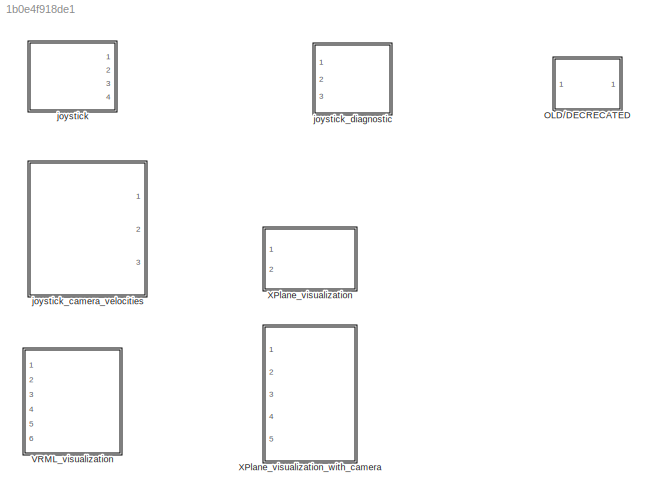
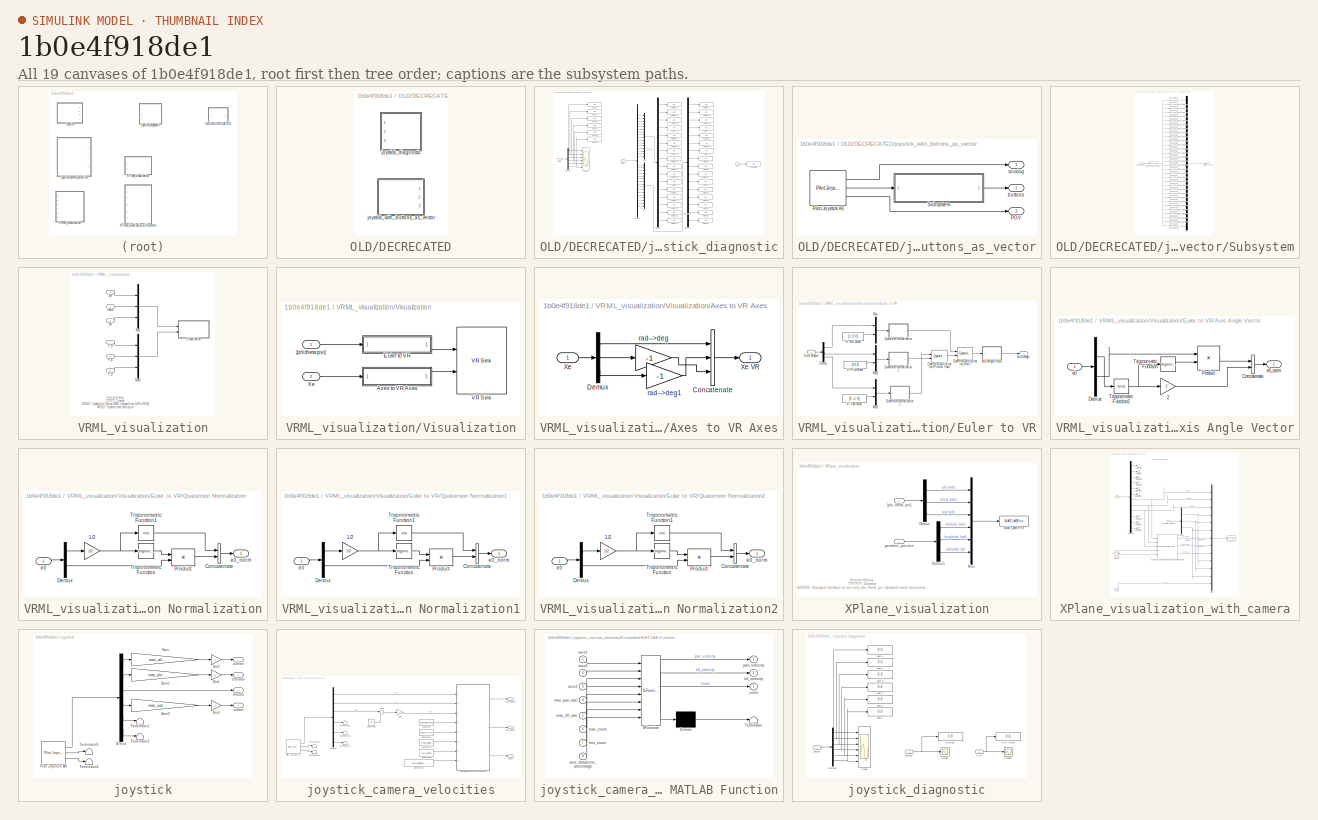
[diagram: thumbnail index - all 19 canvases of the model, root first then tree order]
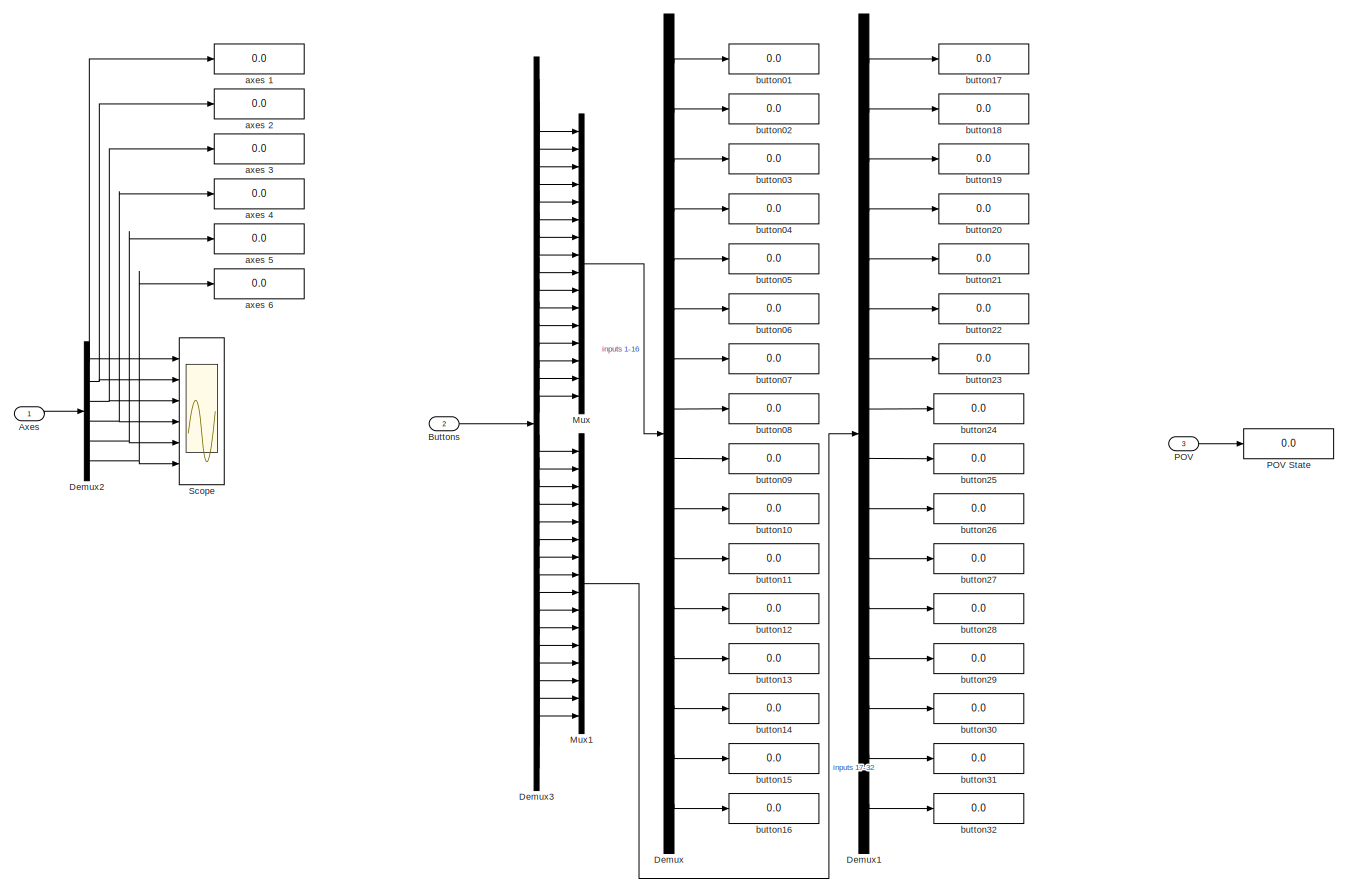
[diagram: OLD/DECRECATED/joystick_diagnostic - part 1/1, most of the canvas]
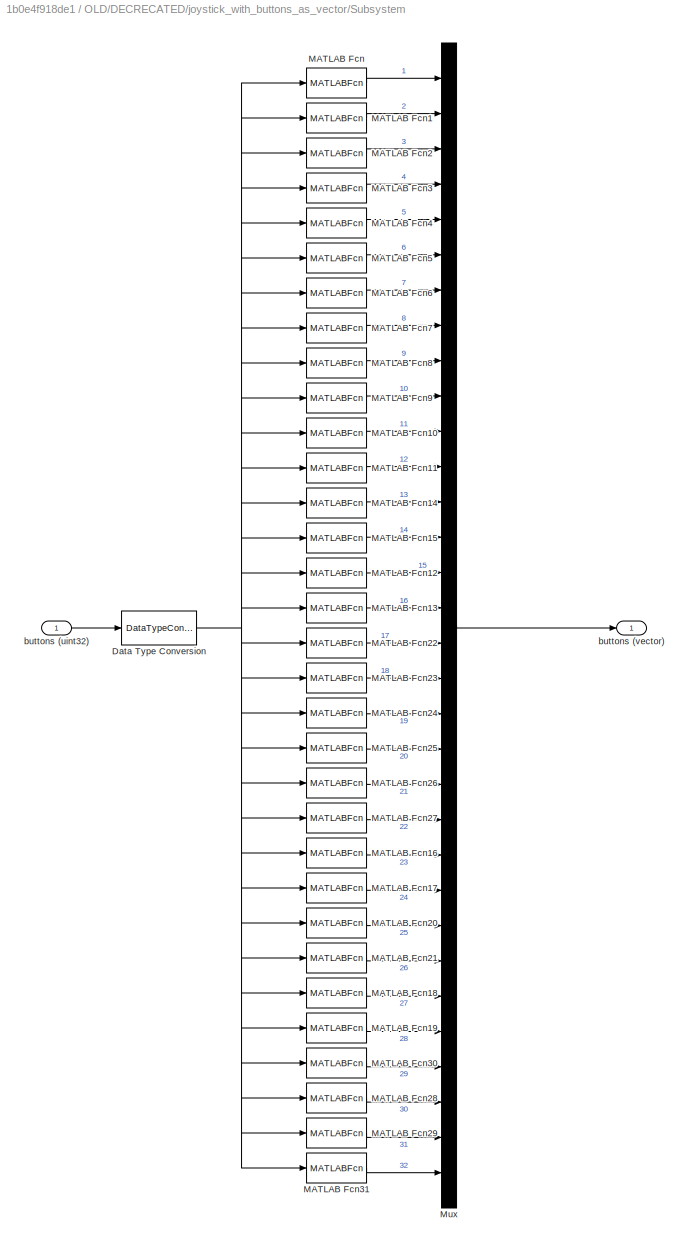
MODEL slx_1b0e4f918de1
KIND library
CONFIG AbsTol = auto
CONFIG EnableMultiTasking = on
CONFIG FixedStep = auto
CONFIG MaxStep = auto
CONFIG MinStep = auto
CONFIG RelTol = 1e-3
CONFIG SampleTimeConstraint = Unconstrained
CONFIG SolverName = ode45
CONFIG StartTime = 0.0
CONFIG StopTime = 10.0
BLOCK [SubSystem] OLD//DECRECATED
  Ports = []
  RequestExecContextInheritance = off
BLOCK [SubSystem] OLD//DECRECATED/joystick_diagnostic
  Ports = [3]
  RequestExecContextInheritance = off
BLOCK [Inport] OLD//DECRECATED/joystick_diagnostic/Axes
BLOCK [Inport] OLD//DECRECATED/joystick_diagnostic/Buttons
  Port = 2
BLOCK [Demux] OLD//DECRECATED/joystick_diagnostic/Demux
  DisplayOption = none
  Outputs = 16
  Ports = [1, 16]
BLOCK [Demux] OLD//DECRECATED/joystick_diagnostic/Demux1
  DisplayOption = none
  Outputs = 16
  Ports = [1, 16]
BLOCK [Demux] OLD//DECRECATED/joystick_diagnostic/Demux2
  DisplayOption = none
  Outputs = 6
  Ports = [1, 6]
BLOCK [Demux] OLD//DECRECATED/joystick_diagnostic/Demux3
  DisplayOption = none
  Outputs = 32
  Ports = [1, 32]
BLOCK [Mux] OLD//DECRECATED/joystick_diagnostic/Mux
  DisplayOption = bar
  Inputs = 16
  Ports = [16, 1]
BLOCK [Mux] OLD//DECRECATED/joystick_diagnostic/Mux1
  DisplayOption = bar
  Inputs = 16
  Ports = [16, 1]
BLOCK [Inport] OLD//DECRECATED/joystick_diagnostic/POV
  Port = 3
BLOCK [Display] OLD//DECRECATED/joystick_diagnostic/POV State
  Decimation = 1
  Ports = [1]
BLOCK [Scope] OLD//DECRECATED/joystick_diagnostic/Scope
  Floating = off
  NumInputPorts = 6
  Ports = [6]
  ScopeSpecificationString = C++SS(StrPVP('Location','[158, 237, 814, 1004]'),StrPVP('Open','off'),MxPVP('AxesTitles',54,'struct(''axes1'',''%<SignalLabel>'',''axes2'',''%<SignalLabel>'',''axes3'',''%<SignalLabel>'',''axes4'',''%<SignalLabel>'',''axes5'',''%<SignalLabel>'',''axes6'',''%<SignalLabel>'')'),StrPVP('ShowLegends','off'),StrPVP('YMin','30885.5~30885.5~62258.3~-1~-1~-1'),StrPVP('YMax','34136.6~34136.6~68811.8~1~1~1'...<+204ch>
BLOCK [Display] OLD//DECRECATED/joystick_diagnostic/axes 1
  Decimation = 1
  Ports = [1]
BLOCK [Display] OLD//DECRECATED/joystick_diagnostic/axes 2
  Decimation = 1
  Ports = [1]
BLOCK [Display] OLD//DECRECATED/joystick_diagnostic/axes 3
  Decimation = 1
  Ports = [1]
BLOCK [Display] OLD//DECRECATED/joystick_diagnostic/axes 4
  Decimation = 1
  Ports = [1]
BLOCK [Display] OLD//DECRECATED/joystick_diagnostic/axes 5
  Decimation = 1
  Ports = [1]
BLOCK [Display] OLD//DECRECATED/joystick_diagnostic/axes 6
  Decimation = 1
  Ports = [1]
BLOCK [Display] OLD//DECRECATED/joystick_diagnostic/button01
  Decimation = 1
  Ports = [1]
BLOCK [Display] OLD//DECRECATED/joystick_diagnostic/button02
  Decimation = 1
  Ports = [1]
BLOCK [Display] OLD//DECRECATED/joystick_diagnostic/button03
  Decimation = 1
  Ports = [1]
BLOCK [Display] OLD//DECRECATED/joystick_diagnostic/button04
  Decimation = 1
  Ports = [1]
BLOCK [Display] OLD//DECRECATED/joystick_diagnostic/button05
  Decimation = 1
  Ports = [1]
BLOCK [Display] OLD//DECRECATED/joystick_diagnostic/button06
  Decimation = 1
  Ports = [1]
BLOCK [Display] OLD//DECRECATED/joystick_diagnostic/button07
  Decimation = 1
  Ports = [1]
BLOCK [Display] OLD//DECRECATED/joystick_diagnostic/button08
  Decimation = 1
  Ports = [1]
BLOCK [Display] OLD//DECRECATED/joystick_diagnostic/button09
  Decimation = 1
  Ports = [1]
BLOCK [Display] OLD//DECRECATED/joystick_diagnostic/button10
  Decimation = 1
  Ports = [1]
BLOCK [Display] OLD//DECRECATED/joystick_diagnostic/button11
  Decimation = 1
  Ports = [1]
BLOCK [Display] OLD//DECRECATED/joystick_diagnostic/button12
  Decimation = 1
  Ports = [1]
BLOCK [Display] OLD//DECRECATED/joystick_diagnostic/button13
  Decimation = 1
  Ports = [1]
BLOCK [Display] OLD//DECRECATED/joystick_diagnostic/button14
  Decimation = 1
  Ports = [1]
BLOCK [Display] OLD//DECRECATED/joystick_diagnostic/button15
  Decimation = 1
  Ports = [1]
BLOCK [Display] OLD//DECRECATED/joystick_diagnostic/button16
  Decimation = 1
  Ports = [1]
BLOCK [Display] OLD//DECRECATED/joystick_diagnostic/button17
  Decimation = 1
  Ports = [1]
BLOCK [Display] OLD//DECRECATED/joystick_diagnostic/button18
  Decimation = 1
  Ports = [1]
BLOCK [Display] OLD//DECRECATED/joystick_diagnostic/button19
  Decimation = 1
  Ports = [1]
BLOCK [Display] OLD//DECRECATED/joystick_diagnostic/button20
  Decimation = 1
  Ports = [1]
BLOCK [Display] OLD//DECRECATED/joystick_diagnostic/button21
  Decimation = 1
  Ports = [1]
BLOCK [Display] OLD//DECRECATED/joystick_diagnostic/button22
  Decimation = 1
  Ports = [1]
BLOCK [Display] OLD//DECRECATED/joystick_diagnostic/button23
  Decimation = 1
  Ports = [1]
BLOCK [Display] OLD//DECRECATED/joystick_diagnostic/button24
  Decimation = 1
  Ports = [1]
BLOCK [Display] OLD//DECRECATED/joystick_diagnostic/button25
  Decimation = 1
  Ports = [1]
BLOCK [Display] OLD//DECRECATED/joystick_diagnostic/button26
  Decimation = 1
  Ports = [1]
BLOCK [Display] OLD//DECRECATED/joystick_diagnostic/button27
  Decimation = 1
  Ports = [1]
BLOCK [Display] OLD//DECRECATED/joystick_diagnostic/button28
  Decimation = 1
  Ports = [1]
BLOCK [Display] OLD//DECRECATED/joystick_diagnostic/button29
  Decimation = 1
  Ports = [1]
BLOCK [Display] OLD//DECRECATED/joystick_diagnostic/button30
  Decimation = 1
  Ports = [1]
BLOCK [Display] OLD//DECRECATED/joystick_diagnostic/button31
  Decimation = 1
  Ports = [1]
BLOCK [Display] OLD//DECRECATED/joystick_diagnostic/button32
  Decimation = 1
  Ports = [1]
BLOCK [SubSystem] OLD//DECRECATED/joystick_with_buttons_as_vector
  Ports = [0, 3]
  RequestExecContextInheritance = off
BLOCK [Outport] OLD//DECRECATED/joystick_with_buttons_as_vector/POV
  Port = 3
  VectorParamsAs1DForOutWhenUnconnected = off
BLOCK [Reference] OLD//DECRECATED/joystick_with_buttons_as_vector/Pilot Joystick All  REF=aerolibanimutils/Pilot Joystick
  Ports = [0, 3]
  SourceBlock = aerolibanimutils/Pilot Joystick
  SourceProductBaseCode = AE
  SourceType = PilotJoystick
BLOCK [SubSystem] OLD//DECRECATED/joystick_with_buttons_as_vector/Subsystem
  Ports = [1, 1]
  RequestExecContextInheritance = off
BLOCK [DataTypeConversion] OLD//DECRECATED/joystick_with_buttons_as_vector/Subsystem/Data Type Conversion
  OutDataTypeStr = double
  RndMeth = Floor
  SaturateOnIntegerOverflow = off
BLOCK [MATLABFcn] OLD//DECRECATED/joystick_with_buttons_as_vector/Subsystem/MATLAB Fcn
  MATLABFcn = bitget(u,1)
  Ports = [1, 1]
BLOCK [MATLABFcn] OLD//DECRECATED/joystick_with_buttons_as_vector/Subsystem/MATLAB Fcn1
  MATLABFcn = bitget(u,2)
  Ports = [1, 1]
BLOCK [MATLABFcn] OLD//DECRECATED/joystick_with_buttons_as_vector/Subsystem/MATLAB Fcn10
  MATLABFcn = bitget(u,11)
  Ports = [1, 1]
BLOCK [MATLABFcn] OLD//DECRECATED/joystick_with_buttons_as_vector/Subsystem/MATLAB Fcn11
  MATLABFcn = bitget(u,12)
  Ports = [1, 1]
BLOCK [MATLABFcn] OLD//DECRECATED/joystick_with_buttons_as_vector/Subsystem/MATLAB Fcn12
  MATLABFcn = bitget(u,15)
  Ports = [1, 1]
BLOCK [MATLABFcn] OLD//DECRECATED/joystick_with_buttons_as_vector/Subsystem/MATLAB Fcn13
  MATLABFcn = bitget(u,16)
  Ports = [1, 1]
BLOCK [MATLABFcn] OLD//DECRECATED/joystick_with_buttons_as_vector/Subsystem/MATLAB Fcn14
  MATLABFcn = bitget(u,13)
  Ports = [1, 1]
BLOCK [MATLABFcn] OLD//DECRECATED/joystick_with_buttons_as_vector/Subsystem/MATLAB Fcn15
  MATLABFcn = bitget(u,14)
  Ports = [1, 1]
BLOCK [MATLABFcn] OLD//DECRECATED/joystick_with_buttons_as_vector/Subsystem/MATLAB Fcn16
  MATLABFcn = bitget(u,23)
  Ports = [1, 1]
BLOCK [MATLABFcn] OLD//DECRECATED/joystick_with_buttons_as_vector/Subsystem/MATLAB Fcn17
  MATLABFcn = bitget(u,24)
  Ports = [1, 1]
BLOCK [MATLABFcn] OLD//DECRECATED/joystick_with_buttons_as_vector/Subsystem/MATLAB Fcn18
  MATLABFcn = bitget(u,27)
  Ports = [1, 1]
BLOCK [MATLABFcn] OLD//DECRECATED/joystick_with_buttons_as_vector/Subsystem/MATLAB Fcn19
  MATLABFcn = bitget(u,28)
  Ports = [1, 1]
BLOCK [MATLABFcn] OLD//DECRECATED/joystick_with_buttons_as_vector/Subsystem/MATLAB Fcn2
  MATLABFcn = bitget(u,3)
  Ports = [1, 1]
BLOCK [MATLABFcn] OLD//DECRECATED/joystick_with_buttons_as_vector/Subsystem/MATLAB Fcn20
  MATLABFcn = bitget(u,25)
  Ports = [1, 1]
BLOCK [MATLABFcn] OLD//DECRECATED/joystick_with_buttons_as_vector/Subsystem/MATLAB Fcn21
  MATLABFcn = bitget(u,26)
  Ports = [1, 1]
BLOCK [MATLABFcn] OLD//DECRECATED/joystick_with_buttons_as_vector/Subsystem/MATLAB Fcn22
  MATLABFcn = bitget(u,17)
  Ports = [1, 1]
BLOCK [MATLABFcn] OLD//DECRECATED/joystick_with_buttons_as_vector/Subsystem/MATLAB Fcn23
  MATLABFcn = bitget(u,18)
  Ports = [1, 1]
BLOCK [MATLABFcn] OLD//DECRECATED/joystick_with_buttons_as_vector/Subsystem/MATLAB Fcn24
  MATLABFcn = bitget(u,19)
  Ports = [1, 1]
BLOCK [MATLABFcn] OLD//DECRECATED/joystick_with_buttons_as_vector/Subsystem/MATLAB Fcn25
  MATLABFcn = bitget(u,20)
  Ports = [1, 1]
BLOCK [MATLABFcn] OLD//DECRECATED/joystick_with_buttons_as_vector/Subsystem/MATLAB Fcn26
  MATLABFcn = bitget(u,21)
  Ports = [1, 1]
BLOCK [MATLABFcn] OLD//DECRECATED/joystick_with_buttons_as_vector/Subsystem/MATLAB Fcn27
  MATLABFcn = bitget(u,22)
  Ports = [1, 1]
BLOCK [MATLABFcn] OLD//DECRECATED/joystick_with_buttons_as_vector/Subsystem/MATLAB Fcn28
  MATLABFcn = bitget(u,30)
  Ports = [1, 1]
BLOCK [MATLABFcn] OLD//DECRECATED/joystick_with_buttons_as_vector/Subsystem/MATLAB Fcn29
  MATLABFcn = bitget(u,31)
  Ports = [1, 1]
BLOCK [MATLABFcn] OLD//DECRECATED/joystick_with_buttons_as_vector/Subsystem/MATLAB Fcn3
  MATLABFcn = bitget(u,4)
  Ports = [1, 1]
BLOCK [MATLABFcn] OLD//DECRECATED/joystick_with_buttons_as_vector/Subsystem/MATLAB Fcn30
  MATLABFcn = bitget(u,29)
  Ports = [1, 1]
BLOCK [MATLABFcn] OLD//DECRECATED/joystick_with_buttons_as_vector/Subsystem/MATLAB Fcn31
  MATLABFcn = bitget(u,32)
  Ports = [1, 1]
BLOCK [MATLABFcn] OLD//DECRECATED/joystick_with_buttons_as_vector/Subsystem/MATLAB Fcn4
  MATLABFcn = bitget(u,5)
  Ports = [1, 1]
BLOCK [MATLABFcn] OLD//DECRECATED/joystick_with_buttons_as_vector/Subsystem/MATLAB Fcn5
  MATLABFcn = bitget(u,6)
  Ports = [1, 1]
BLOCK [MATLABFcn] OLD//DECRECATED/joystick_with_buttons_as_vector/Subsystem/MATLAB Fcn6
  MATLABFcn = bitget(u,7)
  Ports = [1, 1]
BLOCK [MATLABFcn] OLD//DECRECATED/joystick_with_buttons_as_vector/Subsystem/MATLAB Fcn7
  MATLABFcn = bitget(u,8)
  Ports = [1, 1]
BLOCK [MATLABFcn] OLD//DECRECATED/joystick_with_buttons_as_vector/Subsystem/MATLAB Fcn8
  MATLABFcn = bitget(u,9)
  Ports = [1, 1]
BLOCK [MATLABFcn] OLD//DECRECATED/joystick_with_buttons_as_vector/Subsystem/MATLAB Fcn9
  MATLABFcn = bitget(u,10)
  Ports = [1, 1]
BLOCK [Mux] OLD//DECRECATED/joystick_with_buttons_as_vector/Subsystem/Mux
  DisplayOption = bar
  Inputs = 32
  Ports = [32, 1]
BLOCK [Inport] OLD//DECRECATED/joystick_with_buttons_as_vector/Subsystem/buttons (uint32)
BLOCK [Outport] OLD//DECRECATED/joystick_with_buttons_as_vector/Subsystem/buttons (vector)
  VectorParamsAs1DForOutWhenUnconnected = off
BLOCK [Outport] OLD//DECRECATED/joystick_with_buttons_as_vector/analog
  VectorParamsAs1DForOutWhenUnconnected = off
BLOCK [Outport] OLD//DECRECATED/joystick_with_buttons_as_vector/buttons
  Port = 2
  VectorParamsAs1DForOutWhenUnconnected = off
BLOCK [SubSystem] VRML_visualization
  Ports = [6]
  RequestExecContextInheritance = off
BLOCK [Mux] VRML_visualization/Mux
  DisplayOption = bar
  Inputs = 3
  Ports = [3, 1]
BLOCK [Mux] VRML_visualization/Mux1
  DisplayOption = bar
  Inputs = 3
  Ports = [3, 1]
BLOCK [Inport] VRML_visualization/P_D
  Port = 6
BLOCK [Inport] VRML_visualization/P_E
  Port = 5
BLOCK [Inport] VRML_visualization/P_N
  Port = 4
BLOCK [SubSystem] VRML_visualization/Visualization
  Ports = [2]
  RequestExecContextInheritance = off
BLOCK [SubSystem] VRML_visualization/Visualization/Axes to VR Axes
  Ports = [1, 1]
  RequestExecContextInheritance = off
BLOCK [Concatenate] VRML_visualization/Visualization/Axes to VR Axes/Concatenate
  NumInputs = 3
  Ports = [3, 1]
BLOCK [Demux] VRML_visualization/Visualization/Axes to VR Axes/Demux
  DisplayOption = none
  Outputs = 3
  Ports = [1, 3]
BLOCK [Inport] VRML_visualization/Visualization/Axes to VR Axes/Xe
BLOCK [Outport] VRML_visualization/Visualization/Axes to VR Axes/Xe VR
  VectorParamsAs1DForOutWhenUnconnected = off
BLOCK [Gain] VRML_visualization/Visualization/Axes to VR Axes/rad-->deg
  Gain = -1
  NameLocation = top
  OutDataTypeStr = Inherit: Same as input
  ParamDataTypeStr = Inherit: Same as input
  SaturateOnIntegerOverflow = on
BLOCK [Gain] VRML_visualization/Visualization/Axes to VR Axes/rad-->deg1
  Gain = -1
  NameLocation = top
  OutDataTypeStr = Inherit: Same as input
  ParamDataTypeStr = Inherit: Same as input
  SaturateOnIntegerOverflow = on
BLOCK [SubSystem] VRML_visualization/Visualization/Euler to VR
  Ports = [1, 1]
  RequestExecContextInheritance = off
BLOCK [Outport] VRML_visualization/Visualization/Euler to VR/Axis Angle
  VectorParamsAs1DForOutWhenUnconnected = off
BLOCK [SubSystem] VRML_visualization/Visualization/Euler to VR/Axis Angle Vector
  Ports = [1, 1]
  RequestExecContextInheritance = off
BLOCK [Gain] VRML_visualization/Visualization/Euler to VR/Axis Angle Vector/2
  Gain = 2
  OutDataTypeStr = Inherit: Same as input
  ParamDataTypeStr = Inherit: Same as input
  SaturateOnIntegerOverflow = on
BLOCK [Concatenate] VRML_visualization/Visualization/Euler to VR/Axis Angle Vector/Concatenate
  Ports = [2, 1]
BLOCK [Demux] VRML_visualization/Visualization/Euler to VR/Axis Angle Vector/Demux
  DisplayOption = none
  Outputs = [1 3 ]
  Ports = [1, 2]
BLOCK [Product] VRML_visualization/Visualization/Euler to VR/Axis Angle Vector/Product
  InputSameDT = on
  Inputs = */
  OutDataTypeStr = Inherit: Same as first input
  Ports = [2, 1]
  SaturateOnIntegerOverflow = on
BLOCK [Trigonometry] VRML_visualization/Visualization/Euler to VR/Axis Angle Vector/Trigonometric Function
  Ports = [1, 1]
BLOCK [Trigonometry] VRML_visualization/Visualization/Euler to VR/Axis Angle Vector/Trigonometric Function2
  Operator = acos
  Ports = [1, 1]
BLOCK [Inport] VRML_visualization/Visualization/Euler to VR/Axis Angle Vector/e0
BLOCK [Outport] VRML_visualization/Visualization/Euler to VR/Axis Angle Vector/e0_norm
  VectorParamsAs1DForOutWhenUnconnected = off
BLOCK [Demux] VRML_visualization/Visualization/Euler to VR/Demux
  DisplayOption = none
  Outputs = 3
  Ports = [1, 3]
BLOCK [Inport] VRML_visualization/Visualization/Euler to VR/Euler Angles
BLOCK [Mux] VRML_visualization/Visualization/Euler to VR/Mux
  DisplayOption = bar
  Inputs = 2
  Ports = [2, 1]
BLOCK [Mux] VRML_visualization/Visualization/Euler to VR/Mux1
  DisplayOption = bar
  Inputs = 2
  Ports = [2, 1]
BLOCK [Mux] VRML_visualization/Visualization/Euler to VR/Mux2
  DisplayOption = bar
  Inputs = 2
  Ports = [2, 1]
BLOCK [Reference] VRML_visualization/Visualization/Euler to VR/Quaternion Multiplication (Pitch & Yaw)  REF=aerolibutil/Quaternion
Multiplication
  Ports = [2, 1]
  SourceBlock = aerolibutil/Quaternion\nMultiplication
  SourceProductBaseCode = AE
  SourceType = Quaternion Multiplication
BLOCK [Reference] VRML_visualization/Visualization/Euler to VR/Quaternion Multiplication (Roll)  REF=aerolibutil/Quaternion
Multiplication
  Ports = [2, 1]
  SourceBlock = aerolibutil/Quaternion\nMultiplication
  SourceProductBaseCode = AE
  SourceType = Quaternion Multiplication
BLOCK [SubSystem] VRML_visualization/Visualization/Euler to VR/Quaternion Normalization
  Ports = [1, 1]
  RequestExecContextInheritance = off
BLOCK [Gain] VRML_visualization/Visualization/Euler to VR/Quaternion Normalization/1//2
  Gain = 1/2
  OutDataTypeStr = Inherit: Same as input
  ParamDataTypeStr = Inherit: Same as input
  SaturateOnIntegerOverflow = on
BLOCK [Concatenate] VRML_visualization/Visualization/Euler to VR/Quaternion Normalization/Concatenate
  Ports = [2, 1]
BLOCK [Demux] VRML_visualization/Visualization/Euler to VR/Quaternion Normalization/Demux
  DisplayOption = none
  Outputs = [1 3]
  Ports = [1, 2]
BLOCK [Product] VRML_visualization/Visualization/Euler to VR/Quaternion Normalization/Product
  InputSameDT = on
  OutDataTypeStr = Inherit: Same as first input
  Ports = [2, 1]
  SaturateOnIntegerOverflow = on
BLOCK [Trigonometry] VRML_visualization/Visualization/Euler to VR/Quaternion Normalization/Trigonometric Function
  Ports = [1, 1]
BLOCK [Trigonometry] VRML_visualization/Visualization/Euler to VR/Quaternion Normalization/Trigonometric Function1
  Operator = cos
  Ports = [1, 1]
BLOCK [Inport] VRML_visualization/Visualization/Euler to VR/Quaternion Normalization/e0
BLOCK [Outport] VRML_visualization/Visualization/Euler to VR/Quaternion Normalization/e0_norm
  VectorParamsAs1DForOutWhenUnconnected = off
BLOCK [SubSystem] VRML_visualization/Visualization/Euler to VR/Quaternion Normalization1
  Ports = [1, 1]
  RequestExecContextInheritance = off
BLOCK [Gain] VRML_visualization/Visualization/Euler to VR/Quaternion Normalization1/1//2
  Gain = 1/2
  OutDataTypeStr = Inherit: Same as input
  ParamDataTypeStr = Inherit: Same as input
  SaturateOnIntegerOverflow = on
BLOCK [Concatenate] VRML_visualization/Visualization/Euler to VR/Quaternion Normalization1/Concatenate
  Ports = [2, 1]
BLOCK [Demux] VRML_visualization/Visualization/Euler to VR/Quaternion Normalization1/Demux
  DisplayOption = none
  Outputs = [1 3]
  Ports = [1, 2]
BLOCK [Product] VRML_visualization/Visualization/Euler to VR/Quaternion Normalization1/Product
  InputSameDT = on
  OutDataTypeStr = Inherit: Same as first input
  Ports = [2, 1]
  SaturateOnIntegerOverflow = on
BLOCK [Trigonometry] VRML_visualization/Visualization/Euler to VR/Quaternion Normalization1/Trigonometric Function
  Ports = [1, 1]
BLOCK [Trigonometry] VRML_visualization/Visualization/Euler to VR/Quaternion Normalization1/Trigonometric Function1
  Operator = cos
  Ports = [1, 1]
BLOCK [Inport] VRML_visualization/Visualization/Euler to VR/Quaternion Normalization1/e0
BLOCK [Outport] VRML_visualization/Visualization/Euler to VR/Quaternion Normalization1/e0_norm
  VectorParamsAs1DForOutWhenUnconnected = off
BLOCK [SubSystem] VRML_visualization/Visualization/Euler to VR/Quaternion Normalization2
  Ports = [1, 1]
  RequestExecContextInheritance = off
BLOCK [Gain] VRML_visualization/Visualization/Euler to VR/Quaternion Normalization2/1//2
  Gain = 1/2
  OutDataTypeStr = Inherit: Same as input
  ParamDataTypeStr = Inherit: Same as input
  SaturateOnIntegerOverflow = on
BLOCK [Concatenate] VRML_visualization/Visualization/Euler to VR/Quaternion Normalization2/Concatenate
  Ports = [2, 1]
BLOCK [Demux] VRML_visualization/Visualization/Euler to VR/Quaternion Normalization2/Demux
  DisplayOption = none
  Outputs = [1 3]
  Ports = [1, 2]
BLOCK [Product] VRML_visualization/Visualization/Euler to VR/Quaternion Normalization2/Product
  InputSameDT = on
  OutDataTypeStr = Inherit: Same as first input
  Ports = [2, 1]
  SaturateOnIntegerOverflow = on
BLOCK [Trigonometry] VRML_visualization/Visualization/Euler to VR/Quaternion Normalization2/Trigonometric Function
  Ports = [1, 1]
BLOCK [Trigonometry] VRML_visualization/Visualization/Euler to VR/Quaternion Normalization2/Trigonometric Function1
  Operator = cos
  Ports = [1, 1]
BLOCK [Inport] VRML_visualization/Visualization/Euler to VR/Quaternion Normalization2/e0
BLOCK [Outport] VRML_visualization/Visualization/Euler to VR/Quaternion Normalization2/e0_norm
  VectorParamsAs1DForOutWhenUnconnected = off
BLOCK [Constant] VRML_visualization/Visualization/Euler to VR/Vr Pitch Axes
  NameLocation = top
  Value = [0 0 1]
BLOCK [Constant] VRML_visualization/Visualization/Euler to VR/Vr Roll Axes
  NameLocation = top
  Value = [1 0 0]
BLOCK [Constant] VRML_visualization/Visualization/Euler to VR/Vr Yaw Axes
  Value = [0 -1 0]
BLOCK [Reference] VRML_visualization/Visualization/VR Sink   REF=vrlib/VR Sink
  InstantiateOnLoad = on
  Ports = [2]
  SourceBlock = vrlib/VR Sink
  SourceProductBaseCode = SL
  SourceType = Virtual Reality Sink
BLOCK [Inport] VRML_visualization/Visualization/Xe
  Port = 2
BLOCK [Inport] VRML_visualization/Visualization/[phi;theta;psi]
BLOCK [Inport] VRML_visualization/phi
BLOCK [Inport] VRML_visualization/psi
  Port = 3
BLOCK [Inport] VRML_visualization/theta
  Port = 2
BLOCK [SubSystem] XPlane_visualization
  Ports = [2]
  RequestExecContextInheritance = off
BLOCK [Demux] XPlane_visualization/Demux
  Outputs = 3
  Ports = [1, 3]
BLOCK [Demux] XPlane_visualization/Demux5
  Outputs = 3
  Ports = [1, 3]
BLOCK [MATLABFcn] XPlane_visualization/MATLAB Fcn
  MATLABFcn = SendPositionOrientationToXPlaneOverUDP(u, IP_address, plugin_listening_port_number, numDigitsOfPrecision)
  OutputDimensions = 0
  Ports = [1]
BLOCK [Mux] XPlane_visualization/Mux
  DisplayOption = bar
  Inputs = 6
  Ports = [6, 1]
BLOCK [Inport] XPlane_visualization/[phi, theta, psi]
BLOCK [Inport] XPlane_visualization/geodetic_position
  Port = 2
BLOCK [SubSystem] XPlane_visualization_with_camera
  Ports = [5]
  RequestExecContextInheritance = off
BLOCK [Demux] XPlane_visualization_with_camera/Demux3
  Outputs = 12
  Ports = [1, 12]
BLOCK [Demux] XPlane_visualization_with_camera/Demux5
  Outputs = 3
  Ports = [1, 3]
BLOCK [MATLABFcn] XPlane_visualization_with_camera/MATLAB Fcn
  MATLABFcn = SendPositionOrientationAndCameraViewToXPlaneOverUDP(u, IP_address, plugin_listening_port_number, numDigitsOfPrecision)
  OutputDimensions = 0
  Ports = [1]
BLOCK [Mux] XPlane_visualization_with_camera/Mux
  DisplayOption = bar
  Inputs = 13
  Ports = [13, 1]
BLOCK [Terminator] XPlane_visualization_with_camera/Terminator10
BLOCK [Terminator] XPlane_visualization_with_camera/Terminator11
BLOCK [Terminator] XPlane_visualization_with_camera/Terminator12
BLOCK [Terminator] XPlane_visualization_with_camera/Terminator13
BLOCK [Terminator] XPlane_visualization_with_camera/Terminator14
BLOCK [Terminator] XPlane_visualization_with_camera/Terminator6
BLOCK [Terminator] XPlane_visualization_with_camera/Terminator7
BLOCK [Terminator] XPlane_visualization_with_camera/Terminator8
BLOCK [Terminator] XPlane_visualization_with_camera/Terminator9
BLOCK [Inport] XPlane_visualization_with_camera/X
BLOCK [Reference] XPlane_visualization_with_camera/equivalent_euler_angles_NED_to_camera_frame  REF=LumAerospaceBlockset_Payloads/equivalent_euler_angles_NED_to_camera_frame
  Ports = [5, 3]
  SourceBlock = LumAerospaceBlockset_Payloads/equivalent_euler_angles_NED_to_camera_frame
BLOCK [Inport] XPlane_visualization_with_camera/geodetic_position
  Port = 2
BLOCK [Inport] XPlane_visualization_with_camera/pan_angle
  Port = 3
BLOCK [Inport] XPlane_visualization_with_camera/tilt_angle
  Port = 4
BLOCK [Inport] XPlane_visualization_with_camera/zoom
  Port = 5
BLOCK [SubSystem] joystick
  Ports = [0, 4]
  RequestExecContextInheritance = off
BLOCK [Demux] joystick/Demux
  Outputs = 6
  Ports = [1, 6]
BLOCK [Gain] joystick/Gain
  Gain = max_aileron_deflection
BLOCK [Gain] joystick/Gain1
  Gain = max_elevator_deflection
BLOCK [Gain] joystick/Gain2
  Gain = max_rudder_deflection
BLOCK [Gain] joystick/Gin1
  Gain = -1
BLOCK [Gain] joystick/Gin2
  Gain = -1
BLOCK [Gain] joystick/Gin3
  Gain = -1
BLOCK [Reference] joystick/Pilot Joystick All  REF=aerolibanimutils/Pilot Joystick
  Ports = [0, 3]
  SourceBlock = aerolibanimutils/Pilot Joystick
  SourceProductBaseCode = AE
  SourceType = PilotJoystick
BLOCK [Terminator] joystick/Terminator1
BLOCK [Terminator] joystick/Terminator2
BLOCK [Terminator] joystick/Terminator3
BLOCK [Terminator] joystick/Terminator4
BLOCK [Outport] joystick/aileron
  VectorParamsAs1DForOutWhenUnconnected = off
BLOCK [Outport] joystick/elevator
  Port = 2
  VectorParamsAs1DForOutWhenUnconnected = off
BLOCK [Outport] joystick/rudder
  Port = 3
  VectorParamsAs1DForOutWhenUnconnected = off
BLOCK [Outport] joystick/throttle
  Port = 4
  VectorParamsAs1DForOutWhenUnconnected = off
BLOCK [SubSystem] joystick_camera_velocities
  Ports = [0, 3]
  RequestExecContextInheritance = off
BLOCK [Constant] joystick_camera_velocities/Constant
  Value = max_pan_rate
BLOCK [Constant] joystick_camera_velocities/Constant1
  Value = max_tilt_rate
BLOCK [Constant] joystick_camera_velocities/Constant2
  Value = axis_deadzone_percentage
BLOCK [Constant] joystick_camera_velocities/Constant3
  Value = 0.5
BLOCK [Constant] joystick_camera_velocities/Constant4
  Value = max_zoom
BLOCK [Constant] joystick_camera_velocities/Constant5
  Value = min_zoom
BLOCK [Demux] joystick_camera_velocities/Demux
  Outputs = 6
  Ports = [1, 6]
BLOCK [SubSystem] joystick_camera_velocities/Embedded MATLAB Function
  ErrorFcn = Stateflow.Translate.translate
  PermitHierarchicalResolution = ExplicitOnly
  Ports = [8, 3]
  RequestExecContextInheritance = off
  SFBlockType = MATLAB Function
  TreatAsAtomicUnit = on
BLOCK [Demux] joystick_camera_velocities/Embedded MATLAB Function/ Demux 
  Outputs = 1
  Ports = [1, 1]
BLOCK [S-Function] joystick_camera_velocities/Embedded MATLAB Function/ SFunction 
  EnableBusSupport = off
  FunctionName = sf_sfun
  PortCounts = [8 4]
  Ports = [8, 4]
  SFcnIsStateOwnerBlock = off
  SFunctionDeploymentMode = off
  Tag = Stateflow S-Function 1
BLOCK [Terminator] joystick_camera_velocities/Embedded MATLAB Function/ Terminator 
BLOCK [Inport] joystick_camera_velocities/Embedded MATLAB Function/axis1
BLOCK [Inport] joystick_camera_velocities/Embedded MATLAB Function/axis2
  Port = 2
BLOCK [Inport] joystick_camera_velocities/Embedded MATLAB Function/axis3
  Port = 3
BLOCK [Inport] joystick_camera_velocities/Embedded MATLAB Function/axis_deadzone_percentage
  Port = 8
BLOCK [Inport] joystick_camera_velocities/Embedded MATLAB Function/max_pan_rate
  Port = 4
BLOCK [Inport] joystick_camera_velocities/Embedded MATLAB Function/max_tilt_rate
  Port = 5
BLOCK [Inport] joystick_camera_velocities/Embedded MATLAB Function/max_zoom
  Port = 6
BLOCK [Inport] joystick_camera_velocities/Embedded MATLAB Function/min_zoom
  Port = 7
BLOCK [Outport] joystick_camera_velocities/Embedded MATLAB Function/pan_velocity
  VectorParamsAs1DForOutWhenUnconnected = off
BLOCK [Outport] joystick_camera_velocities/Embedded MATLAB Function/tilt_velocity
  Port = 2
  VectorParamsAs1DForOutWhenUnconnected = off
BLOCK [Outport] joystick_camera_velocities/Embedded MATLAB Function/zoom
  Port = 3
  VectorParamsAs1DForOutWhenUnconnected = off
BLOCK [Gain] joystick_camera_velocities/Gain
  Gain = 2
BLOCK [Reference] joystick_camera_velocities/Pilot Joystick All  REF=aerolibanimutils/Pilot Joystick
  Ports = [0, 3]
  SourceBlock = aerolibanimutils/Pilot Joystick
  SourceProductBaseCode = AE
  SourceType = PilotJoystick
BLOCK [Sum] joystick_camera_velocities/Sum
  Inputs = |+-
  Ports = [2, 1]
BLOCK [Terminator] joystick_camera_velocities/Terminator1
BLOCK [Terminator] joystick_camera_velocities/Terminator2
BLOCK [Terminator] joystick_camera_velocities/Terminator3
BLOCK [Terminator] joystick_camera_velocities/Terminator4
BLOCK [Terminator] joystick_camera_velocities/Terminator5
BLOCK [Outport] joystick_camera_velocities/pan_velocity
  VectorParamsAs1DForOutWhenUnconnected = off
BLOCK [Outport] joystick_camera_velocities/tilt_velocity
  Port = 2
  VectorParamsAs1DForOutWhenUnconnected = off
BLOCK [Outport] joystick_camera_velocities/zoom
  Port = 3
  VectorParamsAs1DForOutWhenUnconnected = off
BLOCK [SubSystem] joystick_diagnostic
  Ports = [3]
  RequestExecContextInheritance = off
BLOCK [Display] joystick_diagnostic/Buttons
  Decimation = 1
  Ports = [1]
BLOCK [Demux] joystick_diagnostic/Demux2
  DisplayOption = none
  Outputs = 6
  Ports = [1, 6]
BLOCK [Inport] joystick_diagnostic/POV
  Port = 3
BLOCK [Display] joystick_diagnostic/POV State
  Decimation = 1
  Ports = [1]
BLOCK [Scope] joystick_diagnostic/Scope
  Floating = off
  NumInputPorts = 6
  Ports = [6]
  ScopeSpecificationString = C++SS(StrPVP('Location','[158, 237, 814, 1004]'),StrPVP('Open','off'),MxPVP('AxesTitles',54,'struct(''axes1'',''%<SignalLabel>'',''axes2'',''%<SignalLabel>'',''axes3'',''%<SignalLabel>'',''axes4'',''%<SignalLabel>'',''axes5'',''%<SignalLabel>'',''axes6'',''%<SignalLabel>'')'),StrPVP('ShowLegends','off'),StrPVP('YMin','30885.5~30885.5~62258.3~-1~-1~-1'),StrPVP('YMax','34136.6~34136.6~68811.8~1~1~1'...<+204ch>
BLOCK [Scope] joystick_diagnostic/Scope1
  Floating = off
  NumInputPorts = 1
  Ports = [1]
  ScopeSpecificationString = C++SS(StrPVP('Location','[188, 390, 512, 629]'),StrPVP('Open','off'),MxPVP('AxesTitles',54,'struct(''axes1'',''%<SignalLabel>'')'),StrPVP('ShowLegends','off'),StrPVP('DataFormat','StructureWithTime'),StrPVP('BlockParamSampleTime','0'),StrPVP('LimitDataPoints','on'),StrPVP('Decimation','1'),StrPVP('BlockParamSampleInput','off'))
BLOCK [Scope] joystick_diagnostic/Scope2
  Floating = off
  NumInputPorts = 1
  Ports = [1]
  ScopeSpecificationString = C++SS(StrPVP('Location','[188, 390, 512, 629]'),StrPVP('Open','off'),MxPVP('AxesTitles',54,'struct(''axes1'',''%<SignalLabel>'')'),StrPVP('ShowLegends','off'),StrPVP('SaveName','ScopeData2'),StrPVP('DataFormat','StructureWithTime'),StrPVP('BlockParamSampleTime','0'),StrPVP('LimitDataPoints','on'),StrPVP('Decimation','1'),StrPVP('BlockParamSampleInput','off'))
BLOCK [Inport] joystick_diagnostic/analog
BLOCK [Display] joystick_diagnostic/axes 1
  Decimation = 1
  Ports = [1]
BLOCK [Display] joystick_diagnostic/axes 2
  Decimation = 1
  Ports = [1]
BLOCK [Display] joystick_diagnostic/axes 3
  Decimation = 1
  Ports = [1]
BLOCK [Display] joystick_diagnostic/axes 4
  Decimation = 1
  Ports = [1]
BLOCK [Display] joystick_diagnostic/axes 5
  Decimation = 1
  Ports = [1]
BLOCK [Display] joystick_diagnostic/axes 6
  Decimation = 1
  Ports = [1]
BLOCK [Inport] joystick_diagnostic/buttons
  Port = 2
ANNOTATION VRML_visualization: Version History ??/??/??: Created 03/14/17: Updated for Matlab 2016B (changed from 'hl20' to 'HL20') 04/10/17: Updated mask description.
ANNOTATION XPlane_visualization: Version History ??/??/??: Created 06/02/20: Changed interface to use only phi, theta, psi. Updated mask documentation
ANNOTATION XPlane_visualization_with_camera: 01/20/24: Fixed broken link
LINE OLD//DECRECATED/joystick_diagnostic/Axes:1 -> OLD//DECRECATED/joystick_diagnostic/Demux2:1
LINE OLD//DECRECATED/joystick_diagnostic/Buttons:1 -> OLD//DECRECATED/joystick_diagnostic/Demux3:1
LINE OLD//DECRECATED/joystick_diagnostic/Demux1:1 -> OLD//DECRECATED/joystick_diagnostic/button17:1
LINE OLD//DECRECATED/joystick_diagnostic/Demux1:10 -> OLD//DECRECATED/joystick_diagnostic/button26:1
LINE OLD//DECRECATED/joystick_diagnostic/Demux1:11 -> OLD//DECRECATED/joystick_diagnostic/button27:1
LINE OLD//DECRECATED/joystick_diagnostic/Demux1:12 -> OLD//DECRECATED/joystick_diagnostic/button28:1
LINE OLD//DECRECATED/joystick_diagnostic/Demux1:13 -> OLD//DECRECATED/joystick_diagnostic/button29:1
LINE OLD//DECRECATED/joystick_diagnostic/Demux1:14 -> OLD//DECRECATED/joystick_diagnostic/button30:1
LINE OLD//DECRECATED/joystick_diagnostic/Demux1:15 -> OLD//DECRECATED/joystick_diagnostic/button31:1
LINE OLD//DECRECATED/joystick_diagnostic/Demux1:16 -> OLD//DECRECATED/joystick_diagnostic/button32:1
LINE OLD//DECRECATED/joystick_diagnostic/Demux1:2 -> OLD//DECRECATED/joystick_diagnostic/button18:1
LINE OLD//DECRECATED/joystick_diagnostic/Demux1:3 -> OLD//DECRECATED/joystick_diagnostic/button19:1
LINE OLD//DECRECATED/joystick_diagnostic/Demux1:4 -> OLD//DECRECATED/joystick_diagnostic/button20:1
LINE OLD//DECRECATED/joystick_diagnostic/Demux1:5 -> OLD//DECRECATED/joystick_diagnostic/button21:1
LINE OLD//DECRECATED/joystick_diagnostic/Demux1:6 -> OLD//DECRECATED/joystick_diagnostic/button22:1
LINE OLD//DECRECATED/joystick_diagnostic/Demux1:7 -> OLD//DECRECATED/joystick_diagnostic/button23:1
LINE OLD//DECRECATED/joystick_diagnostic/Demux1:8 -> OLD//DECRECATED/joystick_diagnostic/button24:1
LINE OLD//DECRECATED/joystick_diagnostic/Demux1:9 -> OLD//DECRECATED/joystick_diagnostic/button25:1
NET OLD//DECRECATED/joystick_diagnostic/Demux2:1 -> OLD//DECRECATED/joystick_diagnostic/Scope:1, OLD//DECRECATED/joystick_diagnostic/axes 1:1
NET OLD//DECRECATED/joystick_diagnostic/Demux2:2 -> OLD//DECRECATED/joystick_diagnostic/Scope:2, OLD//DECRECATED/joystick_diagnostic/axes 2:1
NET OLD//DECRECATED/joystick_diagnostic/Demux2:3 -> OLD//DECRECATED/joystick_diagnostic/Scope:3, OLD//DECRECATED/joystick_diagnostic/axes 3:1
NET OLD//DECRECATED/joystick_diagnostic/Demux2:4 -> OLD//DECRECATED/joystick_diagnostic/Scope:4, OLD//DECRECATED/joystick_diagnostic/axes 4:1
NET OLD//DECRECATED/joystick_diagnostic/Demux2:5 -> OLD//DECRECATED/joystick_diagnostic/Scope:5, OLD//DECRECATED/joystick_diagnostic/axes 5:1
NET OLD//DECRECATED/joystick_diagnostic/Demux2:6 -> OLD//DECRECATED/joystick_diagnostic/Scope:6, OLD//DECRECATED/joystick_diagnostic/axes 6:1
LINE OLD//DECRECATED/joystick_diagnostic/Demux3:1 -> OLD//DECRECATED/joystick_diagnostic/Mux:1
LINE OLD//DECRECATED/joystick_diagnostic/Demux3:10 -> OLD//DECRECATED/joystick_diagnostic/Mux:10
LINE OLD//DECRECATED/joystick_diagnostic/Demux3:11 -> OLD//DECRECATED/joystick_diagnostic/Mux:11
LINE OLD//DECRECATED/joystick_diagnostic/Demux3:12 -> OLD//DECRECATED/joystick_diagnostic/Mux:12
LINE OLD//DECRECATED/joystick_diagnostic/Demux3:13 -> OLD//DECRECATED/joystick_diagnostic/Mux:13
LINE OLD//DECRECATED/joystick_diagnostic/Demux3:14 -> OLD//DECRECATED/joystick_diagnostic/Mux:14
LINE OLD//DECRECATED/joystick_diagnostic/Demux3:15 -> OLD//DECRECATED/joystick_diagnostic/Mux:15
LINE OLD//DECRECATED/joystick_diagnostic/Demux3:16 -> OLD//DECRECATED/joystick_diagnostic/Mux:16
LINE OLD//DECRECATED/joystick_diagnostic/Demux3:17 -> OLD//DECRECATED/joystick_diagnostic/Mux1:1
LINE OLD//DECRECATED/joystick_diagnostic/Demux3:18 -> OLD//DECRECATED/joystick_diagnostic/Mux1:2
LINE OLD//DECRECATED/joystick_diagnostic/Demux3:19 -> OLD//DECRECATED/joystick_diagnostic/Mux1:3
LINE OLD//DECRECATED/joystick_diagnostic/Demux3:2 -> OLD//DECRECATED/joystick_diagnostic/Mux:2
LINE OLD//DECRECATED/joystick_diagnostic/Demux3:20 -> OLD//DECRECATED/joystick_diagnostic/Mux1:4
LINE OLD//DECRECATED/joystick_diagnostic/Demux3:21 -> OLD//DECRECATED/joystick_diagnostic/Mux1:5
LINE OLD//DECRECATED/joystick_diagnostic/Demux3:22 -> OLD//DECRECATED/joystick_diagnostic/Mux1:6
LINE OLD//DECRECATED/joystick_diagnostic/Demux3:23 -> OLD//DECRECATED/joystick_diagnostic/Mux1:7
LINE OLD//DECRECATED/joystick_diagnostic/Demux3:24 -> OLD//DECRECATED/joystick_diagnostic/Mux1:8
LINE OLD//DECRECATED/joystick_diagnostic/Demux3:25 -> OLD//DECRECATED/joystick_diagnostic/Mux1:9
LINE OLD//DECRECATED/joystick_diagnostic/Demux3:26 -> OLD//DECRECATED/joystick_diagnostic/Mux1:10
LINE OLD//DECRECATED/joystick_diagnostic/Demux3:27 -> OLD//DECRECATED/joystick_diagnostic/Mux1:11
LINE OLD//DECRECATED/joystick_diagnostic/Demux3:28 -> OLD//DECRECATED/joystick_diagnostic/Mux1:12
LINE OLD//DECRECATED/joystick_diagnostic/Demux3:29 -> OLD//DECRECATED/joystick_diagnostic/Mux1:13
LINE OLD//DECRECATED/joystick_diagnostic/Demux3:3 -> OLD//DECRECATED/joystick_diagnostic/Mux:3
LINE OLD//DECRECATED/joystick_diagnostic/Demux3:30 -> OLD//DECRECATED/joystick_diagnostic/Mux1:14
LINE OLD//DECRECATED/joystick_diagnostic/Demux3:31 -> OLD//DECRECATED/joystick_diagnostic/Mux1:15
LINE OLD//DECRECATED/joystick_diagnostic/Demux3:32 -> OLD//DECRECATED/joystick_diagnostic/Mux1:16
LINE OLD//DECRECATED/joystick_diagnostic/Demux3:4 -> OLD//DECRECATED/joystick_diagnostic/Mux:4
LINE OLD//DECRECATED/joystick_diagnostic/Demux3:5 -> OLD//DECRECATED/joystick_diagnostic/Mux:5
LINE OLD//DECRECATED/joystick_diagnostic/Demux3:6 -> OLD//DECRECATED/joystick_diagnostic/Mux:6
LINE OLD//DECRECATED/joystick_diagnostic/Demux3:7 -> OLD//DECRECATED/joystick_diagnostic/Mux:7
LINE OLD//DECRECATED/joystick_diagnostic/Demux3:8 -> OLD//DECRECATED/joystick_diagnostic/Mux:8
LINE OLD//DECRECATED/joystick_diagnostic/Demux3:9 -> OLD//DECRECATED/joystick_diagnostic/Mux:9
LINE OLD//DECRECATED/joystick_diagnostic/Demux:1 -> OLD//DECRECATED/joystick_diagnostic/button01:1
LINE OLD//DECRECATED/joystick_diagnostic/Demux:10 -> OLD//DECRECATED/joystick_diagnostic/button10:1
LINE OLD//DECRECATED/joystick_diagnostic/Demux:11 -> OLD//DECRECATED/joystick_diagnostic/button11:1
LINE OLD//DECRECATED/joystick_diagnostic/Demux:12 -> OLD//DECRECATED/joystick_diagnostic/button12:1
LINE OLD//DECRECATED/joystick_diagnostic/Demux:13 -> OLD//DECRECATED/joystick_diagnostic/button13:1
LINE OLD//DECRECATED/joystick_diagnostic/Demux:14 -> OLD//DECRECATED/joystick_diagnostic/button14:1
LINE OLD//DECRECATED/joystick_diagnostic/Demux:15 -> OLD//DECRECATED/joystick_diagnostic/button15:1
LINE OLD//DECRECATED/joystick_diagnostic/Demux:16 -> OLD//DECRECATED/joystick_diagnostic/button16:1
LINE OLD//DECRECATED/joystick_diagnostic/Demux:2 -> OLD//DECRECATED/joystick_diagnostic/button02:1
LINE OLD//DECRECATED/joystick_diagnostic/Demux:3 -> OLD//DECRECATED/joystick_diagnostic/button03:1
LINE OLD//DECRECATED/joystick_diagnostic/Demux:4 -> OLD//DECRECATED/joystick_diagnostic/button04:1
LINE OLD//DECRECATED/joystick_diagnostic/Demux:5 -> OLD//DECRECATED/joystick_diagnostic/button05:1
LINE OLD//DECRECATED/joystick_diagnostic/Demux:6 -> OLD//DECRECATED/joystick_diagnostic/button06:1
LINE OLD//DECRECATED/joystick_diagnostic/Demux:7 -> OLD//DECRECATED/joystick_diagnostic/button07:1
LINE OLD//DECRECATED/joystick_diagnostic/Demux:8 -> OLD//DECRECATED/joystick_diagnostic/button08:1
LINE OLD//DECRECATED/joystick_diagnostic/Demux:9 -> OLD//DECRECATED/joystick_diagnostic/button09:1
LINE OLD//DECRECATED/joystick_diagnostic/Mux1:1 -> OLD//DECRECATED/joystick_diagnostic/Demux1:1
LINE OLD//DECRECATED/joystick_diagnostic/Mux:1 -> OLD//DECRECATED/joystick_diagnostic/Demux:1
LINE OLD//DECRECATED/joystick_diagnostic/POV:1 -> OLD//DECRECATED/joystick_diagnostic/POV State:1
LINE OLD//DECRECATED/joystick_with_buttons_as_vector/Pilot Joystick All:1 -> OLD//DECRECATED/joystick_with_buttons_as_vector/analog:1
LINE OLD//DECRECATED/joystick_with_buttons_as_vector/Pilot Joystick All:2 -> OLD//DECRECATED/joystick_with_buttons_as_vector/Subsystem:1
LINE OLD//DECRECATED/joystick_with_buttons_as_vector/Pilot Joystick All:3 -> OLD//DECRECATED/joystick_with_buttons_as_vector/POV:1
NET OLD//DECRECATED/joystick_with_buttons_as_vector/Subsystem/Data Type Conversion:1 -> OLD//DECRECATED/joystick_with_buttons_as_vector/Subsystem/MATLAB Fcn10:1, OLD//DECRECATED/joystick_with_buttons_as_vector/Subsystem/MATLAB Fcn11:1, OLD//DECRECATED/joystick_with_buttons_as_vector/Subsystem/MATLAB Fcn12:1, OLD//DECRECATED/joystick_with_buttons_as_vector/Subsystem/MATLAB Fcn13:1, OLD//DECRECATED/joystick_with_buttons_as_vector/Subsystem/MATLAB Fcn14:1, OLD//DECRECATED/joystick_with_buttons_as_vector/Subsystem/MATLAB Fcn15:1, OLD//DECRECATED/joystick_with_buttons_as_vector/Subsystem/MATLAB Fcn16:1, OLD//DECRECATED/joystick_with_buttons_as_vector/Subsystem/MATLAB Fcn17:1, OLD//DECRECATED/joystick_with_buttons_as_vector/Subsystem/MATLAB Fcn18:1, OLD//DECRECATED/joystick_with_buttons_as_vector/Subsystem/MATLAB Fcn19:1, OLD//DECRECATED/joystick_with_buttons_as_vector/Subsystem/MATLAB Fcn1:1, OLD//DECRECATED/joystick_with_buttons_as_vector/Subsystem/MATLAB Fcn20:1, OLD//DECRECATED/joystick_with_buttons_as_vector/Subsystem/MATLAB Fcn21:1, OLD//DECRECATED/joystick_with_buttons_as_vector/Subsystem/MATLAB Fcn22:1, OLD//DECRECATED/joystick_with_buttons_as_vector/Subsystem/MATLAB Fcn23:1, OLD//DECRECATED/joystick_with_buttons_as_vector/Subsystem/MATLAB Fcn24:1, OLD//DECRECATED/joystick_with_buttons_as_vector/Subsystem/MATLAB Fcn25:1, OLD//DECRECATED/joystick_with_buttons_as_vector/Subsystem/MATLAB Fcn26:1, OLD//DECRECATED/joystick_with_buttons_as_vector/Subsystem/MATLAB Fcn27:1, OLD//DECRECATED/joystick_with_buttons_as_vector/Subsystem/MATLAB Fcn28:1, OLD//DECRECATED/joystick_with_buttons_as_vector/Subsystem/MATLAB Fcn29:1, OLD//DECRECATED/joystick_with_buttons_as_vector/Subsystem/MATLAB Fcn2:1, OLD//DECRECATED/joystick_with_buttons_as_vector/Subsystem/MATLAB Fcn30:1, OLD//DECRECATED/joystick_with_buttons_as_vector/Subsystem/MATLAB Fcn31:1, OLD//DECRECATED/joystick_with_buttons_as_vector/Subsystem/MATLAB Fcn3:1, OLD//DECRECATED/joystick_with_buttons_as_vector/Subsystem/MATLAB Fcn4:1, OLD//DECRECATED/joystick_with_buttons_as_vector/Subsystem/MATLAB Fcn5:1, OLD//DECRECATED/joystick_with_buttons_as_vector/Subsystem/MATLAB Fcn6:1, OLD//DECRECATED/joystick_with_buttons_as_vector/Subsystem/MATLAB Fcn7:1, OLD//DECRECATED/joystick_with_buttons_as_vector/Subsystem/MATLAB Fcn8:1, OLD//DECRECATED/joystick_with_buttons_as_vector/Subsystem/MATLAB Fcn9:1, OLD//DECRECATED/joystick_with_buttons_as_vector/Subsystem/MATLAB Fcn:1
LINE OLD//DECRECATED/joystick_with_buttons_as_vector/Subsystem/MATLAB Fcn10:1 -> OLD//DECRECATED/joystick_with_buttons_as_vector/Subsystem/Mux:11
LINE OLD//DECRECATED/joystick_with_buttons_as_vector/Subsystem/MATLAB Fcn11:1 -> OLD//DECRECATED/joystick_with_buttons_as_vector/Subsystem/Mux:12
LINE OLD//DECRECATED/joystick_with_buttons_as_vector/Subsystem/MATLAB Fcn12:1 -> OLD//DECRECATED/joystick_with_buttons_as_vector/Subsystem/Mux:15
LINE OLD//DECRECATED/joystick_with_buttons_as_vector/Subsystem/MATLAB Fcn13:1 -> OLD//DECRECATED/joystick_with_buttons_as_vector/Subsystem/Mux:16
LINE OLD//DECRECATED/joystick_with_buttons_as_vector/Subsystem/MATLAB Fcn14:1 -> OLD//DECRECATED/joystick_with_buttons_as_vector/Subsystem/Mux:13
LINE OLD//DECRECATED/joystick_with_buttons_as_vector/Subsystem/MATLAB Fcn15:1 -> OLD//DECRECATED/joystick_with_buttons_as_vector/Subsystem/Mux:14
LINE OLD//DECRECATED/joystick_with_buttons_as_vector/Subsystem/MATLAB Fcn16:1 -> OLD//DECRECATED/joystick_with_buttons_as_vector/Subsystem/Mux:23
LINE OLD//DECRECATED/joystick_with_buttons_as_vector/Subsystem/MATLAB Fcn17:1 -> OLD//DECRECATED/joystick_with_buttons_as_vector/Subsystem/Mux:24
LINE OLD//DECRECATED/joystick_with_buttons_as_vector/Subsystem/MATLAB Fcn18:1 -> OLD//DECRECATED/joystick_with_buttons_as_vector/Subsystem/Mux:27
LINE OLD//DECRECATED/joystick_with_buttons_as_vector/Subsystem/MATLAB Fcn19:1 -> OLD//DECRECATED/joystick_with_buttons_as_vector/Subsystem/Mux:28
LINE OLD//DECRECATED/joystick_with_buttons_as_vector/Subsystem/MATLAB Fcn1:1 -> OLD//DECRECATED/joystick_with_buttons_as_vector/Subsystem/Mux:2
LINE OLD//DECRECATED/joystick_with_buttons_as_vector/Subsystem/MATLAB Fcn20:1 -> OLD//DECRECATED/joystick_with_buttons_as_vector/Subsystem/Mux:25
LINE OLD//DECRECATED/joystick_with_buttons_as_vector/Subsystem/MATLAB Fcn21:1 -> OLD//DECRECATED/joystick_with_buttons_as_vector/Subsystem/Mux:26
LINE OLD//DECRECATED/joystick_with_buttons_as_vector/Subsystem/MATLAB Fcn22:1 -> OLD//DECRECATED/joystick_with_buttons_as_vector/Subsystem/Mux:17
LINE OLD//DECRECATED/joystick_with_buttons_as_vector/Subsystem/MATLAB Fcn23:1 -> OLD//DECRECATED/joystick_with_buttons_as_vector/Subsystem/Mux:18
LINE OLD//DECRECATED/joystick_with_buttons_as_vector/Subsystem/MATLAB Fcn24:1 -> OLD//DECRECATED/joystick_with_buttons_as_vector/Subsystem/Mux:19
LINE OLD//DECRECATED/joystick_with_buttons_as_vector/Subsystem/MATLAB Fcn25:1 -> OLD//DECRECATED/joystick_with_buttons_as_vector/Subsystem/Mux:20
LINE OLD//DECRECATED/joystick_with_buttons_as_vector/Subsystem/MATLAB Fcn26:1 -> OLD//DECRECATED/joystick_with_buttons_as_vector/Subsystem/Mux:21
LINE OLD//DECRECATED/joystick_with_buttons_as_vector/Subsystem/MATLAB Fcn27:1 -> OLD//DECRECATED/joystick_with_buttons_as_vector/Subsystem/Mux:22
LINE OLD//DECRECATED/joystick_with_buttons_as_vector/Subsystem/MATLAB Fcn28:1 -> OLD//DECRECATED/joystick_with_buttons_as_vector/Subsystem/Mux:30
LINE OLD//DECRECATED/joystick_with_buttons_as_vector/Subsystem/MATLAB Fcn29:1 -> OLD//DECRECATED/joystick_with_buttons_as_vector/Subsystem/Mux:31
LINE OLD//DECRECATED/joystick_with_buttons_as_vector/Subsystem/MATLAB Fcn2:1 -> OLD//DECRECATED/joystick_with_buttons_as_vector/Subsystem/Mux:3
LINE OLD//DECRECATED/joystick_with_buttons_as_vector/Subsystem/MATLAB Fcn30:1 -> OLD//DECRECATED/joystick_with_buttons_as_vector/Subsystem/Mux:29
LINE OLD//DECRECATED/joystick_with_buttons_as_vector/Subsystem/MATLAB Fcn31:1 -> OLD//DECRECATED/joystick_with_buttons_as_vector/Subsystem/Mux:32
LINE OLD//DECRECATED/joystick_with_buttons_as_vector/Subsystem/MATLAB Fcn3:1 -> OLD//DECRECATED/joystick_with_buttons_as_vector/Subsystem/Mux:4
LINE OLD//DECRECATED/joystick_with_buttons_as_vector/Subsystem/MATLAB Fcn4:1 -> OLD//DECRECATED/joystick_with_buttons_as_vector/Subsystem/Mux:5
LINE OLD//DECRECATED/joystick_with_buttons_as_vector/Subsystem/MATLAB Fcn5:1 -> OLD//DECRECATED/joystick_with_buttons_as_vector/Subsystem/Mux:6
LINE OLD//DECRECATED/joystick_with_buttons_as_vector/Subsystem/MATLAB Fcn6:1 -> OLD//DECRECATED/joystick_with_buttons_as_vector/Subsystem/Mux:7
LINE OLD//DECRECATED/joystick_with_buttons_as_vector/Subsystem/MATLAB Fcn7:1 -> OLD//DECRECATED/joystick_with_buttons_as_vector/Subsystem/Mux:8
LINE OLD//DECRECATED/joystick_with_buttons_as_vector/Subsystem/MATLAB Fcn8:1 -> OLD//DECRECATED/joystick_with_buttons_as_vector/Subsystem/Mux:9
LINE OLD//DECRECATED/joystick_with_buttons_as_vector/Subsystem/MATLAB Fcn9:1 -> OLD//DECRECATED/joystick_with_buttons_as_vector/Subsystem/Mux:10
LINE OLD//DECRECATED/joystick_with_buttons_as_vector/Subsystem/MATLAB Fcn:1 -> OLD//DECRECATED/joystick_with_buttons_as_vector/Subsystem/Mux:1
LINE OLD//DECRECATED/joystick_with_buttons_as_vector/Subsystem/Mux:1 -> OLD//DECRECATED/joystick_with_buttons_as_vector/Subsystem/buttons (vector):1
LINE OLD//DECRECATED/joystick_with_buttons_as_vector/Subsystem/buttons (uint32):1 -> OLD//DECRECATED/joystick_with_buttons_as_vector/Subsystem/Data Type Conversion:1
LINE OLD//DECRECATED/joystick_with_buttons_as_vector/Subsystem:1 -> OLD//DECRECATED/joystick_with_buttons_as_vector/buttons:1
LINE VRML_visualization/Mux1:1 -> VRML_visualization/Visualization:2
LINE VRML_visualization/Mux:1 -> VRML_visualization/Visualization:1
LINE VRML_visualization/P_D:1 -> VRML_visualization/Mux1:3
LINE VRML_visualization/P_E:1 -> VRML_visualization/Mux1:2
LINE VRML_visualization/P_N:1 -> VRML_visualization/Mux1:1
LINE VRML_visualization/Visualization/Axes to VR Axes/Concatenate:1 -> VRML_visualization/Visualization/Axes to VR Axes/Xe VR:1
LINE VRML_visualization/Visualization/Axes to VR Axes/Demux:1 -> VRML_visualization/Visualization/Axes to VR Axes/Concatenate:1
LINE VRML_visualization/Visualization/Axes to VR Axes/Demux:2 -> VRML_visualization/Visualization/Axes to VR Axes/rad-->deg:1
LINE VRML_visualization/Visualization/Axes to VR Axes/Demux:3 -> VRML_visualization/Visualization/Axes to VR Axes/rad-->deg1:1
LINE VRML_visualization/Visualization/Axes to VR Axes/Xe:1 -> VRML_visualization/Visualization/Axes to VR Axes/Demux:1
LINE VRML_visualization/Visualization/Axes to VR Axes/rad-->deg1:1 -> VRML_visualization/Visualization/Axes to VR Axes/Concatenate:2
LINE VRML_visualization/Visualization/Axes to VR Axes/rad-->deg:1 -> VRML_visualization/Visualization/Axes to VR Axes/Concatenate:3
LINE VRML_visualization/Visualization/Axes to VR Axes:1 -> VRML_visualization/Visualization/VR Sink :2
LINE VRML_visualization/Visualization/Euler to VR/Axis Angle Vector/2:1 -> VRML_visualization/Visualization/Euler to VR/Axis Angle Vector/Concatenate:2
LINE VRML_visualization/Visualization/Euler to VR/Axis Angle Vector/Concatenate:1 -> VRML_visualization/Visualization/Euler to VR/Axis Angle Vector/e0_norm:1
LINE VRML_visualization/Visualization/Euler to VR/Axis Angle Vector/Demux:1 -> VRML_visualization/Visualization/Euler to VR/Axis Angle Vector/Trigonometric Function2:1
LINE VRML_visualization/Visualization/Euler to VR/Axis Angle Vector/Demux:2 -> VRML_visualization/Visualization/Euler to VR/Axis Angle Vector/Product:1
LINE VRML_visualization/Visualization/Euler to VR/Axis Angle Vector/Product:1 -> VRML_visualization/Visualization/Euler to VR/Axis Angle Vector/Concatenate:1
NET VRML_visualization/Visualization/Euler to VR/Axis Angle Vector/Trigonometric Function2:1 -> VRML_visualization/Visualization/Euler to VR/Axis Angle Vector/2:1, VRML_visualization/Visualization/Euler to VR/Axis Angle Vector/Trigonometric Function:1
LINE VRML_visualization/Visualization/Euler to VR/Axis Angle Vector/Trigonometric Function:1 -> VRML_visualization/Visualization/Euler to VR/Axis Angle Vector/Product:2
LINE VRML_visualization/Visualization/Euler to VR/Axis Angle Vector/e0:1 -> VRML_visualization/Visualization/Euler to VR/Axis Angle Vector/Demux:1
LINE VRML_visualization/Visualization/Euler to VR/Axis Angle Vector:1 -> VRML_visualization/Visualization/Euler to VR/Axis Angle:1
LINE VRML_visualization/Visualization/Euler to VR/Demux:1 -> VRML_visualization/Visualization/Euler to VR/Mux:1
LINE VRML_visualization/Visualization/Euler to VR/Demux:2 -> VRML_visualization/Visualization/Euler to VR/Mux1:1
LINE VRML_visualization/Visualization/Euler to VR/Demux:3 -> VRML_visualization/Visualization/Euler to VR/Mux2:1
LINE VRML_visualization/Visualization/Euler to VR/Euler Angles:1 -> VRML_visualization/Visualization/Euler to VR/Demux:1
LINE VRML_visualization/Visualization/Euler to VR/Mux1:1 -> VRML_visualization/Visualization/Euler to VR/Quaternion Normalization1:1
LINE VRML_visualization/Visualization/Euler to VR/Mux2:1 -> VRML_visualization/Visualization/Euler to VR/Quaternion Normalization2:1
LINE VRML_visualization/Visualization/Euler to VR/Mux:1 -> VRML_visualization/Visualization/Euler to VR/Quaternion Normalization:1
LINE VRML_visualization/Visualization/Euler to VR/Quaternion Multiplication (Pitch & Yaw):1 -> VRML_visualization/Visualization/Euler to VR/Quaternion Multiplication (Roll):2
LINE VRML_visualization/Visualization/Euler to VR/Quaternion Multiplication (Roll):1 -> VRML_visualization/Visualization/Euler to VR/Axis Angle Vector:1
NET VRML_visualization/Visualization/Euler to VR/Quaternion Normalization/1//2:1 -> VRML_visualization/Visualization/Euler to VR/Quaternion Normalization/Trigonometric Function1:1, VRML_visualization/Visualization/Euler to VR/Quaternion Normalization/Trigonometric Function:1
LINE VRML_visualization/Visualization/Euler to VR/Quaternion Normalization/Concatenate:1 -> VRML_visualization/Visualization/Euler to VR/Quaternion Normalization/e0_norm:1
LINE VRML_visualization/Visualization/Euler to VR/Quaternion Normalization/Demux:1 -> VRML_visualization/Visualization/Euler to VR/Quaternion Normalization/1//2:1
LINE VRML_visualization/Visualization/Euler to VR/Quaternion Normalization/Demux:2 -> VRML_visualization/Visualization/Euler to VR/Quaternion Normalization/Product:2
LINE VRML_visualization/Visualization/Euler to VR/Quaternion Normalization/Product:1 -> VRML_visualization/Visualization/Euler to VR/Quaternion Normalization/Concatenate:2
LINE VRML_visualization/Visualization/Euler to VR/Quaternion Normalization/Trigonometric Function1:1 -> VRML_visualization/Visualization/Euler to VR/Quaternion Normalization/Concatenate:1
LINE VRML_visualization/Visualization/Euler to VR/Quaternion Normalization/Trigonometric Function:1 -> VRML_visualization/Visualization/Euler to VR/Quaternion Normalization/Product:1
LINE VRML_visualization/Visualization/Euler to VR/Quaternion Normalization/e0:1 -> VRML_visualization/Visualization/Euler to VR/Quaternion Normalization/Demux:1
NET VRML_visualization/Visualization/Euler to VR/Quaternion Normalization1/1//2:1 -> VRML_visualization/Visualization/Euler to VR/Quaternion Normalization1/Trigonometric Function1:1, VRML_visualization/Visualization/Euler to VR/Quaternion Normalization1/Trigonometric Function:1
LINE VRML_visualization/Visualization/Euler to VR/Quaternion Normalization1/Concatenate:1 -> VRML_visualization/Visualization/Euler to VR/Quaternion Normalization1/e0_norm:1
LINE VRML_visualization/Visualization/Euler to VR/Quaternion Normalization1/Demux:1 -> VRML_visualization/Visualization/Euler to VR/Quaternion Normalization1/1//2:1
LINE VRML_visualization/Visualization/Euler to VR/Quaternion Normalization1/Demux:2 -> VRML_visualization/Visualization/Euler to VR/Quaternion Normalization1/Product:2
LINE VRML_visualization/Visualization/Euler to VR/Quaternion Normalization1/Product:1 -> VRML_visualization/Visualization/Euler to VR/Quaternion Normalization1/Concatenate:2
LINE VRML_visualization/Visualization/Euler to VR/Quaternion Normalization1/Trigonometric Function1:1 -> VRML_visualization/Visualization/Euler to VR/Quaternion Normalization1/Concatenate:1
LINE VRML_visualization/Visualization/Euler to VR/Quaternion Normalization1/Trigonometric Function:1 -> VRML_visualization/Visualization/Euler to VR/Quaternion Normalization1/Product:1
LINE VRML_visualization/Visualization/Euler to VR/Quaternion Normalization1/e0:1 -> VRML_visualization/Visualization/Euler to VR/Quaternion Normalization1/Demux:1
LINE VRML_visualization/Visualization/Euler to VR/Quaternion Normalization1:1 -> VRML_visualization/Visualization/Euler to VR/Quaternion Multiplication (Pitch & Yaw):2
NET VRML_visualization/Visualization/Euler to VR/Quaternion Normalization2/1//2:1 -> VRML_visualization/Visualization/Euler to VR/Quaternion Normalization2/Trigonometric Function1:1, VRML_visualization/Visualization/Euler to VR/Quaternion Normalization2/Trigonometric Function:1
LINE VRML_visualization/Visualization/Euler to VR/Quaternion Normalization2/Concatenate:1 -> VRML_visualization/Visualization/Euler to VR/Quaternion Normalization2/e0_norm:1
LINE VRML_visualization/Visualization/Euler to VR/Quaternion Normalization2/Demux:1 -> VRML_visualization/Visualization/Euler to VR/Quaternion Normalization2/1//2:1
LINE VRML_visualization/Visualization/Euler to VR/Quaternion Normalization2/Demux:2 -> VRML_visualization/Visualization/Euler to VR/Quaternion Normalization2/Product:2
LINE VRML_visualization/Visualization/Euler to VR/Quaternion Normalization2/Product:1 -> VRML_visualization/Visualization/Euler to VR/Quaternion Normalization2/Concatenate:2
LINE VRML_visualization/Visualization/Euler to VR/Quaternion Normalization2/Trigonometric Function1:1 -> VRML_visualization/Visualization/Euler to VR/Quaternion Normalization2/Concatenate:1
LINE VRML_visualization/Visualization/Euler to VR/Quaternion Normalization2/Trigonometric Function:1 -> VRML_visualization/Visualization/Euler to VR/Quaternion Normalization2/Product:1
LINE VRML_visualization/Visualization/Euler to VR/Quaternion Normalization2/e0:1 -> VRML_visualization/Visualization/Euler to VR/Quaternion Normalization2/Demux:1
LINE VRML_visualization/Visualization/Euler to VR/Quaternion Normalization2:1 -> VRML_visualization/Visualization/Euler to VR/Quaternion Multiplication (Pitch & Yaw):1
LINE VRML_visualization/Visualization/Euler to VR/Quaternion Normalization:1 -> VRML_visualization/Visualization/Euler to VR/Quaternion Multiplication (Roll):1
LINE VRML_visualization/Visualization/Euler to VR/Vr Pitch Axes:1 -> VRML_visualization/Visualization/Euler to VR/Mux1:2
LINE VRML_visualization/Visualization/Euler to VR/Vr Roll Axes:1 -> VRML_visualization/Visualization/Euler to VR/Mux:2
LINE VRML_visualization/Visualization/Euler to VR/Vr Yaw Axes:1 -> VRML_visualization/Visualization/Euler to VR/Mux2:2
LINE VRML_visualization/Visualization/Euler to VR:1 -> VRML_visualization/Visualization/VR Sink :1
LINE VRML_visualization/Visualization/Xe:1 -> VRML_visualization/Visualization/Axes to VR Axes:1
LINE VRML_visualization/Visualization/[phi;theta;psi]:1 -> VRML_visualization/Visualization/Euler to VR:1
LINE VRML_visualization/phi:1 -> VRML_visualization/Mux:1
LINE VRML_visualization/psi:1 -> VRML_visualization/Mux:3
LINE VRML_visualization/theta:1 -> VRML_visualization/Mux:2
LINE XPlane_visualization/Demux5:1 -> XPlane_visualization/Mux:4
LINE XPlane_visualization/Demux5:2 -> XPlane_visualization/Mux:5
LINE XPlane_visualization/Demux5:3 -> XPlane_visualization/Mux:6
LINE XPlane_visualization/Demux:1 -> XPlane_visualization/Mux:1
LINE XPlane_visualization/Demux:2 -> XPlane_visualization/Mux:2
LINE XPlane_visualization/Demux:3 -> XPlane_visualization/Mux:3
LINE XPlane_visualization/Mux:1 -> XPlane_visualization/MATLAB Fcn:1
LINE XPlane_visualization/[phi, theta, psi]:1 -> XPlane_visualization/Demux:1
LINE XPlane_visualization/geodetic_position:1 -> XPlane_visualization/Demux5:1
LINE XPlane_visualization_with_camera/Demux3:1 -> XPlane_visualization_with_camera/Terminator6:1
LINE XPlane_visualization_with_camera/Demux3:10 -> XPlane_visualization_with_camera/Terminator12:1
LINE XPlane_visualization_with_camera/Demux3:11 -> XPlane_visualization_with_camera/Terminator13:1
LINE XPlane_visualization_with_camera/Demux3:12 -> XPlane_visualization_with_camera/Terminator14:1
LINE XPlane_visualization_with_camera/Demux3:2 -> XPlane_visualization_with_camera/Terminator7:1
LINE XPlane_visualization_with_camera/Demux3:3 -> XPlane_visualization_with_camera/Terminator8:1
LINE XPlane_visualization_with_camera/Demux3:4 -> XPlane_visualization_with_camera/Terminator9:1
LINE XPlane_visualization_with_camera/Demux3:5 -> XPlane_visualization_with_camera/Terminator10:1
LINE XPlane_visualization_with_camera/Demux3:6 -> XPlane_visualization_with_camera/Terminator11:1
NET XPlane_visualization_with_camera/Demux3:7 -> XPlane_visualization_with_camera/Mux:1, XPlane_visualization_with_camera/equivalent_euler_angles_NED_to_camera_frame:1
NET XPlane_visualization_with_camera/Demux3:8 -> XPlane_visualization_with_camera/Mux:2, XPlane_visualization_with_camera/equivalent_euler_angles_NED_to_camera_frame:2
NET XPlane_visualization_with_camera/Demux3:9 -> XPlane_visualization_with_camera/Mux:3, XPlane_visualization_with_camera/equivalent_euler_angles_NED_to_camera_frame:3
NET XPlane_visualization_with_camera/Demux5:1 -> XPlane_visualization_with_camera/Mux:10, XPlane_visualization_with_camera/Mux:4
NET XPlane_visualization_with_camera/Demux5:2 -> XPlane_visualization_with_camera/Mux:11, XPlane_visualization_with_camera/Mux:5
NET XPlane_visualization_with_camera/Demux5:3 -> XPlane_visualization_with_camera/Mux:12, XPlane_visualization_with_camera/Mux:6
LINE XPlane_visualization_with_camera/Mux:1 -> XPlane_visualization_with_camera/MATLAB Fcn:1
LINE XPlane_visualization_with_camera/X:1 -> XPlane_visualization_with_camera/Demux3:1
LINE XPlane_visualization_with_camera/equivalent_euler_angles_NED_to_camera_frame:1 -> XPlane_visualization_with_camera/Mux:7
LINE XPlane_visualization_with_camera/equivalent_euler_angles_NED_to_camera_frame:2 -> XPlane_visualization_with_camera/Mux:8
LINE XPlane_visualization_with_camera/equivalent_euler_angles_NED_to_camera_frame:3 -> XPlane_visualization_with_camera/Mux:9
LINE XPlane_visualization_with_camera/geodetic_position:1 -> XPlane_visualization_with_camera/Demux5:1
LINE XPlane_visualization_with_camera/pan_angle:1 -> XPlane_visualization_with_camera/equivalent_euler_angles_NED_to_camera_frame:4
LINE XPlane_visualization_with_camera/tilt_angle:1 -> XPlane_visualization_with_camera/equivalent_euler_angles_NED_to_camera_frame:5
LINE XPlane_visualization_with_camera/zoom:1 -> XPlane_visualization_with_camera/Mux:13
LINE joystick/Demux:1 -> joystick/Gain:1
LINE joystick/Demux:2 -> joystick/Gain1:1
LINE joystick/Demux:3 -> joystick/throttle:1
LINE joystick/Demux:4 -> joystick/Gain2:1
LINE joystick/Demux:5 -> joystick/Terminator1:1
LINE joystick/Demux:6 -> joystick/Terminator2:1
LINE joystick/Gain1:1 -> joystick/Gin1:1
LINE joystick/Gain2:1 -> joystick/Gin3:1
LINE joystick/Gain:1 -> joystick/Gin2:1
LINE joystick/Gin1:1 -> joystick/elevator:1
LINE joystick/Gin2:1 -> joystick/aileron:1
LINE joystick/Gin3:1 -> joystick/rudder:1
LINE joystick/Pilot Joystick All:1 -> joystick/Demux:1
LINE joystick/Pilot Joystick All:2 -> joystick/Terminator3:1
LINE joystick/Pilot Joystick All:3 -> joystick/Terminator4:1
LINE joystick_camera_velocities/Constant1:1 -> joystick_camera_velocities/Embedded MATLAB Function:5
LINE joystick_camera_velocities/Constant2:1 -> joystick_camera_velocities/Embedded MATLAB Function:8
LINE joystick_camera_velocities/Constant3:1 -> joystick_camera_velocities/Sum:2
LINE joystick_camera_velocities/Constant4:1 -> joystick_camera_velocities/Embedded MATLAB Function:6
LINE joystick_camera_velocities/Constant5:1 -> joystick_camera_velocities/Embedded MATLAB Function:7
LINE joystick_camera_velocities/Constant:1 -> joystick_camera_velocities/Embedded MATLAB Function:4
LINE joystick_camera_velocities/Demux:1 -> joystick_camera_velocities/Embedded MATLAB Function:1
LINE joystick_camera_velocities/Demux:2 -> joystick_camera_velocities/Embedded MATLAB Function:2
LINE joystick_camera_velocities/Demux:3 -> joystick_camera_velocities/Sum:1
LINE joystick_camera_velocities/Demux:4 -> joystick_camera_velocities/Terminator5:1
LINE joystick_camera_velocities/Demux:5 -> joystick_camera_velocities/Terminator1:1
LINE joystick_camera_velocities/Demux:6 -> joystick_camera_velocities/Terminator2:1
LINE joystick_camera_velocities/Embedded MATLAB Function:1 -> joystick_camera_velocities/pan_velocity:1
LINE joystick_camera_velocities/Embedded MATLAB Function:2 -> joystick_camera_velocities/tilt_velocity:1
LINE joystick_camera_velocities/Embedded MATLAB Function:3 -> joystick_camera_velocities/zoom:1
LINE joystick_camera_velocities/Gain:1 -> joystick_camera_velocities/Embedded MATLAB Function:3
LINE joystick_camera_velocities/Pilot Joystick All:1 -> joystick_camera_velocities/Demux:1
LINE joystick_camera_velocities/Pilot Joystick All:2 -> joystick_camera_velocities/Terminator3:1
LINE joystick_camera_velocities/Pilot Joystick All:3 -> joystick_camera_velocities/Terminator4:1
LINE joystick_camera_velocities/Sum:1 -> joystick_camera_velocities/Gain:1
NET joystick_diagnostic/Demux2:1 -> joystick_diagnostic/Scope:1, joystick_diagnostic/axes 1:1
NET joystick_diagnostic/Demux2:2 -> joystick_diagnostic/Scope:2, joystick_diagnostic/axes 2:1
NET joystick_diagnostic/Demux2:3 -> joystick_diagnostic/Scope:3, joystick_diagnostic/axes 3:1
NET joystick_diagnostic/Demux2:4 -> joystick_diagnostic/Scope:4, joystick_diagnostic/axes 4:1
NET joystick_diagnostic/Demux2:5 -> joystick_diagnostic/Scope:5, joystick_diagnostic/axes 5:1
NET joystick_diagnostic/Demux2:6 -> joystick_diagnostic/Scope:6, joystick_diagnostic/axes 6:1
NET joystick_diagnostic/POV:1 -> joystick_diagnostic/POV State:1, joystick_diagnostic/Scope2:1
LINE joystick_diagnostic/analog:1 -> joystick_diagnostic/Demux2:1
NET joystick_diagnostic/buttons:1 -> joystick_diagnostic/Buttons:1, joystick_diagnostic/Scope1:1
note: NET lines group one-source signal fan-out (src -> all destinations, sorted); 1:1 wires keep LINE
CHART joystick_camera_velocities/Embedded
MATLAB Function states=1 transitions=1
  STATE_LABEL 'eML_blk_kernel()'
  STATE_LABEL 'SCRIPT:\nfunction [pan_velocity, tilt_velocity, zoom] = fcn(axis1, axis2, axis3, max_pan_rate, max_tilt_rate, max_zoom, min_zoom, axis_deadzone_percentage)\n%#eml\n\n%Pan (axis 1)\nif(abs(axis1) < axis_deadzone_percentage)\n    pan_velocity = 0;\nelse\n    pan_velocity = max_pan_rate*axis1;\nend\n\n%Tilt (axis 2)\nif(abs(axis2) < axis_deadzone_percentage)\n    tilt_velocity = 0;\nelse\n    tilt_velocity  = max_t...<+164ch>'
CHART  states=0 transitions=0
